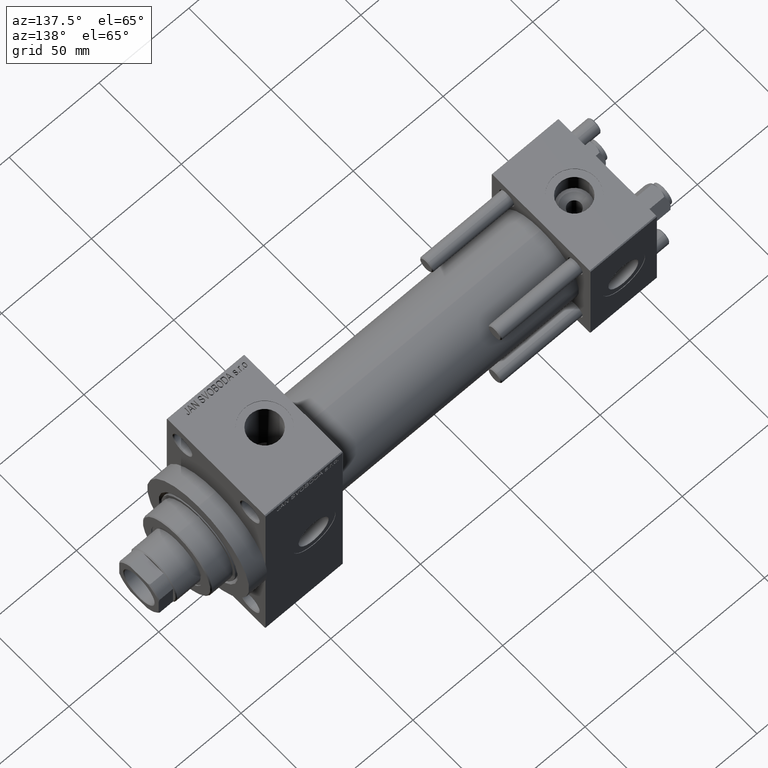
[diagram: clean part render]
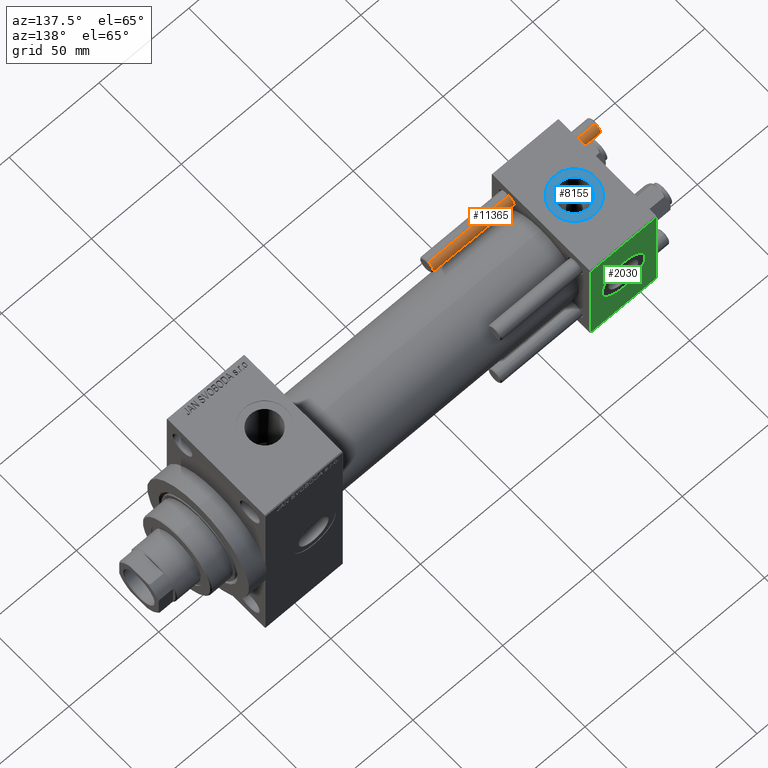
[diagram: same view with three faces highlighted in distinct colors, each labeled with its STEP entity id]
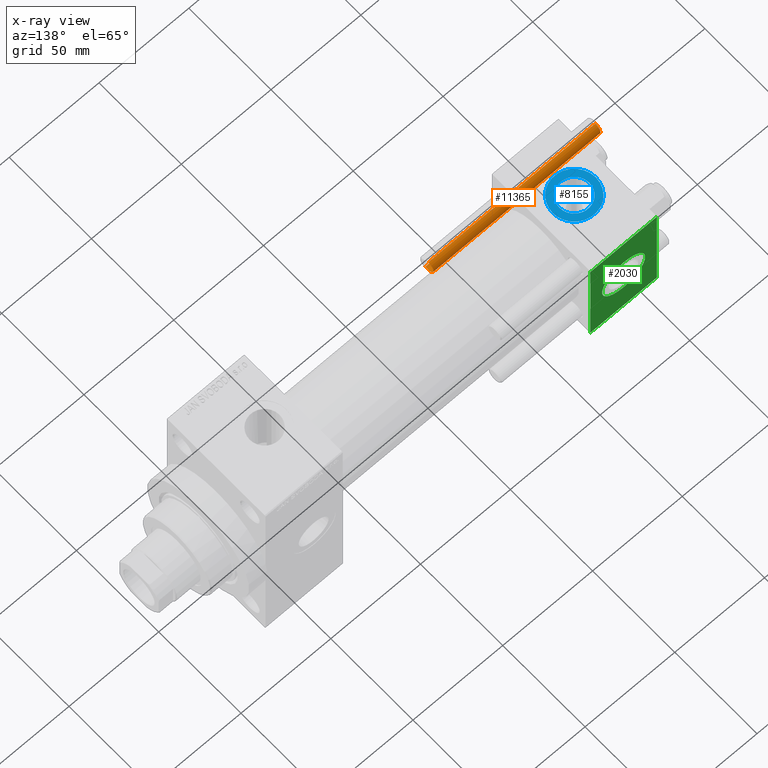
[diagram: x-ray of the same camera — body ghosted, the three highlighted faces saturated]
A machine part, auxiliary view with three faces highlighted in distinct colors.
The next image is the same camera in x-ray (body ghosted, the three faces saturated) — at least one of them is partly hidden behind the body in this view.
Their STEP definitions:

[orange] entity #11365 — the highlighted cylindrical surface (edge-blend (fillet) strip) has radius 4 mm, axis along (1, 0, 0).
#69 = ORIENTED_EDGE ( 'NONE', *, *, #17463, .F. ) ;
#1534 = CARTESIAN_POINT ( 'NONE',  ( 0.000000000000000000, 0.000000000000000000, 94.00000000000000000 ) ) ;
#1871 = CARTESIAN_POINT ( 'NONE',  ( -4.000000000000000000, 0.000000000000000000, 94.00000000000000000 ) ) ;
#2907 = CIRCLE ( 'NONE', #34096, 4.000000000000000000 ) ;
#5292 = DIRECTION ( 'NONE',  ( -0.000000000000000000, -0.000000000000000000, 1.000000000000000000 ) ) ;
#6034 = LINE ( 'NONE', #1871, #41859 ) ;
#7135 = EDGE_CURVE ( 'NONE', #35977, #26950, #26116, .T. ) ;
#9756 = DIRECTION ( 'NONE',  ( -0.000000000000000000, -0.000000000000000000, -1.000000000000000000 ) ) ;
#11365 = ADVANCED_FACE ( 'NONE', ( #17568 ), #18039, .T. ) ;
#12097 = AXIS2_PLACEMENT_3D ( 'NONE', #35007, #34758, #45753 ) ;
#12924 = EDGE_LOOP ( 'NONE', ( #69, #18368, #29753, #30593 ) ) ;
#13931 = CARTESIAN_POINT ( 'NONE',  ( 4.000000000000000000, 4.898587196589412829E-16, 0.5000000000000143219 ) ) ;
#15393 = CARTESIAN_POINT ( 'NONE',  ( -4.000000000000000000, 0.000000000000000000, 93.50000000000001421 ) ) ;
#17463 = EDGE_CURVE ( 'NONE', #35977, #24339, #23889, .T. ) ;
#17568 = FACE_OUTER_BOUND ( 'NONE', #12924, .T. ) ;
#18039 = CYLINDRICAL_SURFACE ( 'NONE', #35284, 4.000000000000000000 ) ;
#18368 = ORIENTED_EDGE ( 'NONE', *, *, #7135, .T. ) ;
#21457 = CARTESIAN_POINT ( 'NONE',  ( -4.000000000000000000, 0.000000000000000000, 0.5000000000000143219 ) ) ;
#23889 = LINE ( 'NONE', #28277, #44743 ) ;
#24339 = VERTEX_POINT ( 'NONE', #13931 ) ;
#26116 = CIRCLE ( 'NONE', #12097, 4.000000000000000000 ) ;
#26763 = CARTESIAN_POINT ( 'NONE',  ( 0.000000000000000000, 0.000000000000000000, 0.5000000000000143219 ) ) ;
#26950 = VERTEX_POINT ( 'NONE', #15393 ) ;
#27626 = DIRECTION ( 'NONE',  ( -1.000000000000000000, 0.000000000000000000, 0.000000000000000000 ) ) ;
#28277 = CARTESIAN_POINT ( 'NONE',  ( 4.000000000000000000, 4.898587196589412829E-16, 94.00000000000000000 ) ) ;
#29446 = EDGE_CURVE ( 'NONE', #40352, #24339, #2907, .T. ) ;
#29753 = ORIENTED_EDGE ( 'NONE', *, *, #37550, .T. ) ;
#30593 = ORIENTED_EDGE ( 'NONE', *, *, #29446, .T. ) ;
#33824 = DIRECTION ( 'NONE',  ( 1.000000000000000000, 0.000000000000000000, 0.000000000000000000 ) ) ;
#34096 = AXIS2_PLACEMENT_3D ( 'NONE', #26763, #5292, #33824 ) ;
#34758 = DIRECTION ( 'NONE',  ( 0.000000000000000000, 0.000000000000000000, -1.000000000000000000 ) ) ;
#35007 = CARTESIAN_POINT ( 'NONE',  ( 0.000000000000000000, 0.000000000000000000, 93.50000000000001421 ) ) ;
#35284 = AXIS2_PLACEMENT_3D ( 'NONE', #1534, #36078, #27626 ) ;
#35763 = DIRECTION ( 'NONE',  ( -0.000000000000000000, -0.000000000000000000, -1.000000000000000000 ) ) ;
#35977 = VERTEX_POINT ( 'NONE', #42478 ) ;
#36078 = DIRECTION ( 'NONE',  ( -0.000000000000000000, -0.000000000000000000, -1.000000000000000000 ) ) ;
#37550 = EDGE_CURVE ( 'NONE', #26950, #40352, #6034, .T. ) ;
#40352 = VERTEX_POINT ( 'NONE', #21457 ) ;
#41859 = VECTOR ( 'NONE', #35763, 1000.000000000000000 ) ;
#42478 = CARTESIAN_POINT ( 'NONE',  ( 4.000000000000000000, 4.898587196589412829E-16, 93.50000000000001421 ) ) ;
#44743 = VECTOR ( 'NONE', #9756, 1000.000000000000000 ) ;
#45753 = DIRECTION ( 'NONE',  ( 1.000000000000000000, 0.000000000000000000, 0.000000000000000000 ) ) ;

[blue] entity #8155 — the highlighted planar face has unit normal (0, 0, 1).
#386 = DIRECTION ( 'NONE',  ( 0.000000000000000000, 0.000000000000000000, 1.000000000000000000 ) ) ;
#1285 = CARTESIAN_POINT ( 'NONE',  ( 18.50000000000000000, -3.469446951953614978E-15, 29.79999999999999716 ) ) ;
#1554 = ORIENTED_EDGE ( 'NONE', *, *, #31254, .T. ) ;
#2001 = CARTESIAN_POINT ( 'NONE',  ( 18.50000000000000000, -3.469446951953614978E-15, 29.79999999999999716 ) ) ;
#3759 = CARTESIAN_POINT ( 'NONE',  ( 10.16999999999999638, -2.449316168263869821E-15, 29.79999999999999716 ) ) ;
#3907 = VERTEX_POINT ( 'NONE', #3759 ) ;
#5215 = DIRECTION ( 'NONE',  ( 1.000000000000000000, 0.000000000000000000, -0.000000000000000000 ) ) ;
#5437 = DIRECTION ( 'NONE',  ( 0.000000000000000000, 0.000000000000000000, 1.000000000000000000 ) ) ;
#5885 = AXIS2_PLACEMENT_3D ( 'NONE', #42287, #30581, #5215 ) ;
#6540 = EDGE_LOOP ( 'NONE', ( #15587, #1554 ) ) ;
#8155 = ADVANCED_FACE ( 'NONE', ( #23507, #16204 ), #19850, .T. ) ;
#9005 = DIRECTION ( 'NONE',  ( 0.000000000000000000, 0.000000000000000000, 1.000000000000000000 ) ) ;
#10610 = CARTESIAN_POINT ( 'NONE',  ( 30.50000000000000000, -3.469446951953614978E-15, 29.79999999999999716 ) ) ;
#13389 = DIRECTION ( 'NONE',  ( 1.000000000000000000, 0.000000000000000000, 0.000000000000000000 ) ) ;
#15587 = ORIENTED_EDGE ( 'NONE', *, *, #46067, .T. ) ;
#15801 = EDGE_CURVE ( 'NONE', #3907, #21200, #16679, .T. ) ;
#16183 = DIRECTION ( 'NONE',  ( 1.000000000000000000, 0.000000000000000000, 0.000000000000000000 ) ) ;
#16204 = FACE_OUTER_BOUND ( 'NONE', #6540, .T. ) ;
#16679 = CIRCLE ( 'NONE', #46267, 8.330000000000000071 ) ;
#17139 = DIRECTION ( 'NONE',  ( 1.000000000000000000, 0.000000000000000000, 0.000000000000000000 ) ) ;
#19597 = DIRECTION ( 'NONE',  ( 1.000000000000000000, 0.000000000000000000, 0.000000000000000000 ) ) ;
#19850 = PLANE ( 'NONE',  #5885 ) ;
#20701 = VERTEX_POINT ( 'NONE', #10610 ) ;
#20791 = DIRECTION ( 'NONE',  ( 0.000000000000000000, 0.000000000000000000, 1.000000000000000000 ) ) ;
#20888 = AXIS2_PLACEMENT_3D ( 'NONE', #1285, #5437, #19597 ) ;
#21200 = VERTEX_POINT ( 'NONE', #40000 ) ;
#23507 = FACE_BOUND ( 'NONE', #37177, .T. ) ;
#25662 = EDGE_CURVE ( 'NONE', #21200, #3907, #32499, .T. ) ;
#26945 = VERTEX_POINT ( 'NONE', #34141 ) ;
#30581 = DIRECTION ( 'NONE',  ( 0.000000000000000000, 0.000000000000000000, 1.000000000000000000 ) ) ;
#30934 = CARTESIAN_POINT ( 'NONE',  ( 18.50000000000000000, -3.469446951953614978E-15, 29.79999999999999716 ) ) ;
#31120 = AXIS2_PLACEMENT_3D ( 'NONE', #2001, #20791, #17139 ) ;
#31254 = EDGE_CURVE ( 'NONE', #26945, #20701, #41904, .T. ) ;
#31677 = ORIENTED_EDGE ( 'NONE', *, *, #15801, .F. ) ;
#32499 = CIRCLE ( 'NONE', #43415, 8.330000000000000071 ) ;
#33449 = CIRCLE ( 'NONE', #31120, 12.00000000000000000 ) ;
#33795 = CARTESIAN_POINT ( 'NONE',  ( 18.50000000000000000, -3.469446951953614978E-15, 29.79999999999999716 ) ) ;
#34141 = CARTESIAN_POINT ( 'NONE',  ( 6.499999999999997335, -1.999870792976790833E-15, 29.79999999999999716 ) ) ;
#34947 = ORIENTED_EDGE ( 'NONE', *, *, #25662, .F. ) ;
#37177 = EDGE_LOOP ( 'NONE', ( #34947, #31677 ) ) ;
#40000 = CARTESIAN_POINT ( 'NONE',  ( 26.82999999999999829, -3.469446951953614978E-15, 29.79999999999999716 ) ) ;
#41904 = CIRCLE ( 'NONE', #20888, 12.00000000000000000 ) ;
#42287 = CARTESIAN_POINT ( 'NONE',  ( 18.50000000000000000, -3.469446951953614978E-15, 29.79999999999999716 ) ) ;
#43415 = AXIS2_PLACEMENT_3D ( 'NONE', #33795, #386, #16183 ) ;
#46067 = EDGE_CURVE ( 'NONE', #20701, #26945, #33449, .T. ) ;
#46267 = AXIS2_PLACEMENT_3D ( 'NONE', #30934, #9005, #13389 ) ;

[green] entity #2030 — the highlighted planar face has unit normal (0, 1, 0).
#578 = VECTOR ( 'NONE', #24720, 1000.000000000000000 ) ;
#618 = ORIENTED_EDGE ( 'NONE', *, *, #27686, .T. ) ;
#956 = LINE ( 'NONE', #23392, #40159 ) ;
#2030 = ADVANCED_FACE ( 'NONE', ( #5233, #15512 ), #19634, .T. ) ;
#3153 = CARTESIAN_POINT ( 'NONE',  ( 18.50000000000000000, 29.99999999999999289, 12.00000000000000178 ) ) ;
#3689 = DIRECTION ( 'NONE',  ( 0.000000000000000000, 0.000000000000000000, 1.000000000000000000 ) ) ;
#5233 = FACE_BOUND ( 'NONE', #30165, .T. ) ;
#5456 = ORIENTED_EDGE ( 'NONE', *, *, #28555, .F. ) ;
#6235 = CARTESIAN_POINT ( 'NONE',  ( 0.000000000000000000, 29.99999999999999289, 30.00000000000000000 ) ) ;
#8421 = DIRECTION ( 'NONE',  ( 0.000000000000000000, -0.000000000000000000, 1.000000000000000000 ) ) ;
#8485 = EDGE_LOOP ( 'NONE', ( #10555, #40985, #18063, #618 ) ) ;
#9979 = ORIENTED_EDGE ( 'NONE', *, *, #41340, .F. ) ;
#10555 = ORIENTED_EDGE ( 'NONE', *, *, #28985, .T. ) ;
#10975 = CARTESIAN_POINT ( 'NONE',  ( 0.000000000000000000, 29.99999999999999289, 29.50000000000000000 ) ) ;
#11071 = EDGE_CURVE ( 'NONE', #20468, #43344, #13797, .T. ) ;
#12559 = CARTESIAN_POINT ( 'NONE',  ( 37.00000000000000000, 29.99999999999999289, -29.50000000000000000 ) ) ;
#13797 = LINE ( 'NONE', #6235, #25939 ) ;
#15512 = FACE_OUTER_BOUND ( 'NONE', #8485, .T. ) ;
#16209 = VERTEX_POINT ( 'NONE', #12559 ) ;
#17206 = DIRECTION ( 'NONE',  ( 0.000000000000000000, 0.000000000000000000, -1.000000000000000000 ) ) ;
#17838 = AXIS2_PLACEMENT_3D ( 'NONE', #37092, #29782, #3689 ) ;
#18000 = DIRECTION ( 'NONE',  ( 0.000000000000000000, 0.000000000000000000, 1.000000000000000000 ) ) ;
#18063 = ORIENTED_EDGE ( 'NONE', *, *, #11071, .F. ) ;
#19634 = PLANE ( 'NONE',  #27499 ) ;
#19857 = CARTESIAN_POINT ( 'NONE',  ( 37.00000000000000000, 29.99999999999999289, 30.00000000000000000 ) ) ;
#20468 = VERTEX_POINT ( 'NONE', #10975 ) ;
#20927 = VECTOR ( 'NONE', #43850, 1000.000000000000000 ) ;
#21236 = EDGE_CURVE ( 'NONE', #16209, #43344, #956, .T. ) ;
#23392 = CARTESIAN_POINT ( 'NONE',  ( 37.00000000000000000, 29.99999999999999289, -29.50000000000000000 ) ) ;
#23525 = DIRECTION ( 'NONE',  ( -0.000000000000000000, 1.000000000000000000, 0.000000000000000000 ) ) ;
#24720 = DIRECTION ( 'NONE',  ( 0.000000000000000000, 0.000000000000000000, -1.000000000000000000 ) ) ;
#25939 = VECTOR ( 'NONE', #17206, 1000.000000000000000 ) ;
#26029 = VERTEX_POINT ( 'NONE', #3153 ) ;
#27499 = AXIS2_PLACEMENT_3D ( 'NONE', #41822, #23525, #8421 ) ;
#27662 = VERTEX_POINT ( 'NONE', #46299 ) ;
#27686 = EDGE_CURVE ( 'NONE', #20468, #27662, #40648, .T. ) ;
#28555 = EDGE_CURVE ( 'NONE', #26029, #35918, #35586, .T. ) ;
#28985 = EDGE_CURVE ( 'NONE', #27662, #16209, #46430, .T. ) ;
#29782 = DIRECTION ( 'NONE',  ( 0.000000000000000000, 1.000000000000000000, 0.000000000000000000 ) ) ;
#30165 = EDGE_LOOP ( 'NONE', ( #5456, #9979 ) ) ;
#32655 = CARTESIAN_POINT ( 'NONE',  ( 0.000000000000000000, 29.99999999999999289, -29.50000000000000000 ) ) ;
#33095 = CARTESIAN_POINT ( 'NONE',  ( 18.50000000000000000, 29.99999999999999289, 0.000000000000000000 ) ) ;
#35586 = CIRCLE ( 'NONE', #41840, 12.00000000000000178 ) ;
#35918 = VERTEX_POINT ( 'NONE', #36880 ) ;
#36268 = CARTESIAN_POINT ( 'NONE',  ( 37.00000000000000000, 29.99999999999999289, 29.50000000000000000 ) ) ;
#36880 = CARTESIAN_POINT ( 'NONE',  ( 18.50000000000000000, 29.99999999999999289, -12.00000000000000178 ) ) ;
#36992 = DIRECTION ( 'NONE',  ( 0.000000000000000000, 1.000000000000000000, 0.000000000000000000 ) ) ;
#37092 = CARTESIAN_POINT ( 'NONE',  ( 18.50000000000000000, 29.99999999999999289, 0.000000000000000000 ) ) ;
#40159 = VECTOR ( 'NONE', #41213, 1000.000000000000000 ) ;
#40648 = LINE ( 'NONE', #36268, #20927 ) ;
#40985 = ORIENTED_EDGE ( 'NONE', *, *, #21236, .T. ) ;
#41213 = DIRECTION ( 'NONE',  ( -1.000000000000000000, 0.000000000000000000, 0.000000000000000000 ) ) ;
#41340 = EDGE_CURVE ( 'NONE', #35918, #26029, #45861, .T. ) ;
#41822 = CARTESIAN_POINT ( 'NONE',  ( 37.00000000000000000, 29.99999999999999289, 30.00000000000000000 ) ) ;
#41840 = AXIS2_PLACEMENT_3D ( 'NONE', #33095, #36992, #18000 ) ;
#43344 = VERTEX_POINT ( 'NONE', #32655 ) ;
#43850 = DIRECTION ( 'NONE',  ( 1.000000000000000000, 0.000000000000000000, 0.000000000000000000 ) ) ;
#45861 = CIRCLE ( 'NONE', #17838, 12.00000000000000178 ) ;
#46299 = CARTESIAN_POINT ( 'NONE',  ( 37.00000000000000000, 29.99999999999999289, 29.50000000000000000 ) ) ;
#46430 = LINE ( 'NONE', #19857, #578 ) ;